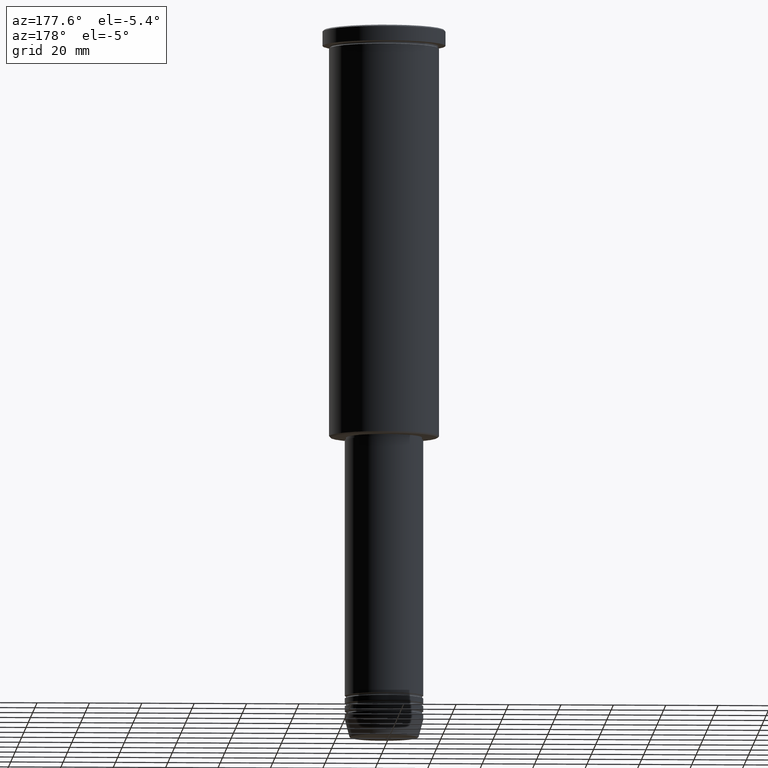
[diagram: clean part render]
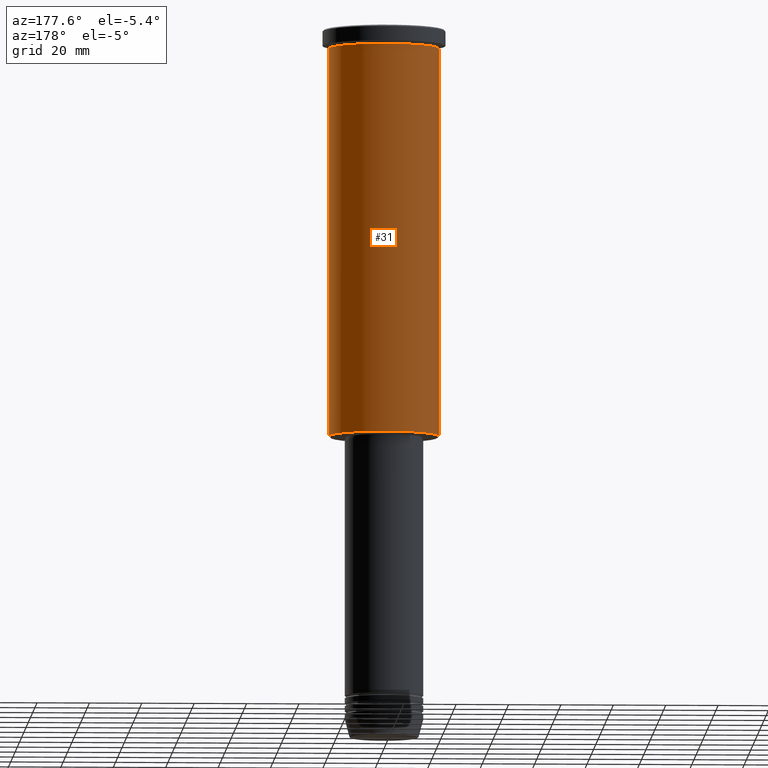
[diagram: same view with one face highlighted and labeled with its STEP entity id]
A machine part, auxiliary view. The second image highlights one B-rep face of the part: STEP entity #31.
In plain terms, the highlighted cylindrical surface (partial cylindrical patch) has radius 21 mm, axis along (-0, -0, 1).
Its self-contained STEP definition (entity closure, byte-faithful):
#10 = ORIENTED_EDGE ( 'NONE', *, *, #654, .T. ) ;
#31 = ADVANCED_FACE ( 'NONE', ( #169 ), #906, .T. ) ;
#56 = ORIENTED_EDGE ( 'NONE', *, *, #99, .T. ) ;
#74 = DIRECTION ( 'NONE',  ( -0.000000000000000000, -0.000000000000000000, 1.000000000000000000 ) ) ;
#85 = EDGE_CURVE ( 'NONE', #1099, #374, #240, .T. ) ;
#86 = ORIENTED_EDGE ( 'NONE', *, *, #597, .F. ) ;
#87 = CIRCLE ( 'NONE', #762, 21.00000000000000000 ) ;
#99 = EDGE_CURVE ( 'NONE', #737, #374, #1111, .T. ) ;
#113 = CARTESIAN_POINT ( 'NONE',  ( 21.00000000000000000, 0.000000000000000000, 0.000000000000000000 ) ) ;
#169 = FACE_OUTER_BOUND ( 'NONE', #596, .T. ) ;
#174 = DIRECTION ( 'NONE',  ( 1.000000000000000000, 0.000000000000000000, 0.000000000000000000 ) ) ;
#240 = CIRCLE ( 'NONE', #823, 21.00000000000000000 ) ;
#341 = CARTESIAN_POINT ( 'NONE',  ( 21.00000000000000000, 0.000000000000000000, -155.4999999999999716 ) ) ;
#374 = VERTEX_POINT ( 'NONE', #648 ) ;
#392 = VECTOR ( 'NONE', #393, 1000.000000000000000 ) ;
#393 = DIRECTION ( 'NONE',  ( -0.000000000000000000, -0.000000000000000000, 1.000000000000000000 ) ) ;
#492 = LINE ( 'NONE', #113, #392 ) ;
#518 = CARTESIAN_POINT ( 'NONE',  ( 0.000000000000000000, 0.000000000000000000, -155.4999999999999716 ) ) ;
#566 = VECTOR ( 'NONE', #645, 1000.000000000000000 ) ;
#596 = EDGE_LOOP ( 'NONE', ( #10, #56, #767, #86 ) ) ;
#597 = EDGE_CURVE ( 'NONE', #962, #1099, #492, .T. ) ;
#645 = DIRECTION ( 'NONE',  ( -0.000000000000000000, -0.000000000000000000, 1.000000000000000000 ) ) ;
#648 = CARTESIAN_POINT ( 'NONE',  ( -21.00000000000000000, 2.571758278209441661E-15, -6.999999999999994671 ) ) ;
#654 = EDGE_CURVE ( 'NONE', #962, #737, #87, .T. ) ;
#657 = CARTESIAN_POINT ( 'NONE',  ( -21.00000000000000000, 2.571758278209441661E-15, 0.000000000000000000 ) ) ;
#724 = CARTESIAN_POINT ( 'NONE',  ( 21.00000000000000000, 0.000000000000000000, -6.999999999999994671 ) ) ;
#737 = VERTEX_POINT ( 'NONE', #771 ) ;
#749 = CARTESIAN_POINT ( 'NONE',  ( 0.000000000000000000, 0.000000000000000000, -6.999999999999994671 ) ) ;
#752 = DIRECTION ( 'NONE',  ( -0.000000000000000000, -0.000000000000000000, 1.000000000000000000 ) ) ;
#762 = AXIS2_PLACEMENT_3D ( 'NONE', #518, #1144, #970 ) ;
#767 = ORIENTED_EDGE ( 'NONE', *, *, #85, .F. ) ;
#771 = CARTESIAN_POINT ( 'NONE',  ( -21.00000000000000000, 2.571758278209441661E-15, -155.4999999999999716 ) ) ;
#823 = AXIS2_PLACEMENT_3D ( 'NONE', #749, #752, #1108 ) ;
#906 = CYLINDRICAL_SURFACE ( 'NONE', #1151, 21.00000000000000000 ) ;
#962 = VERTEX_POINT ( 'NONE', #341 ) ;
#970 = DIRECTION ( 'NONE',  ( -1.000000000000000000, 0.000000000000000000, 0.000000000000000000 ) ) ;
#1086 = CARTESIAN_POINT ( 'NONE',  ( 0.000000000000000000, 0.000000000000000000, 0.000000000000000000 ) ) ;
#1099 = VERTEX_POINT ( 'NONE', #724 ) ;
#1108 = DIRECTION ( 'NONE',  ( 1.000000000000000000, 0.000000000000000000, 0.000000000000000000 ) ) ;
#1111 = LINE ( 'NONE', #657, #566 ) ;
#1144 = DIRECTION ( 'NONE',  ( -0.000000000000000000, -0.000000000000000000, 1.000000000000000000 ) ) ;
#1151 = AXIS2_PLACEMENT_3D ( 'NONE', #1086, #74, #174 ) ;